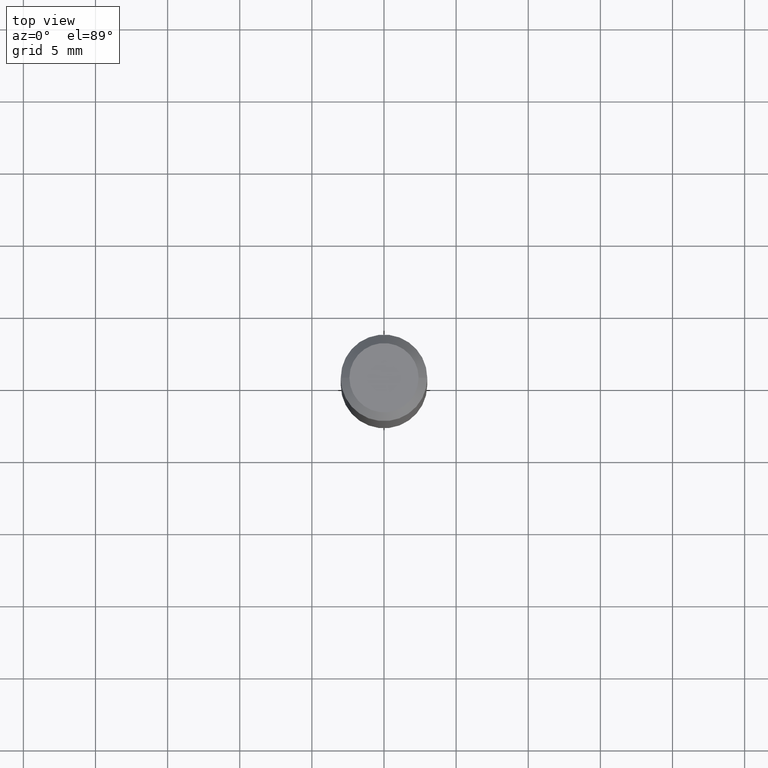
[diagram: clean part render]
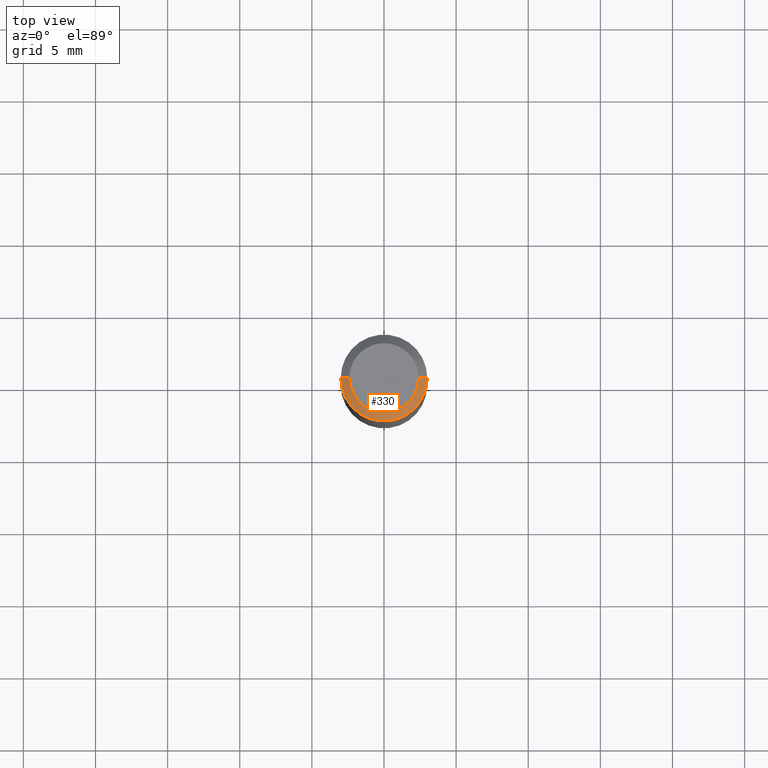
[diagram: same view with one face highlighted and labeled with its STEP entity id]
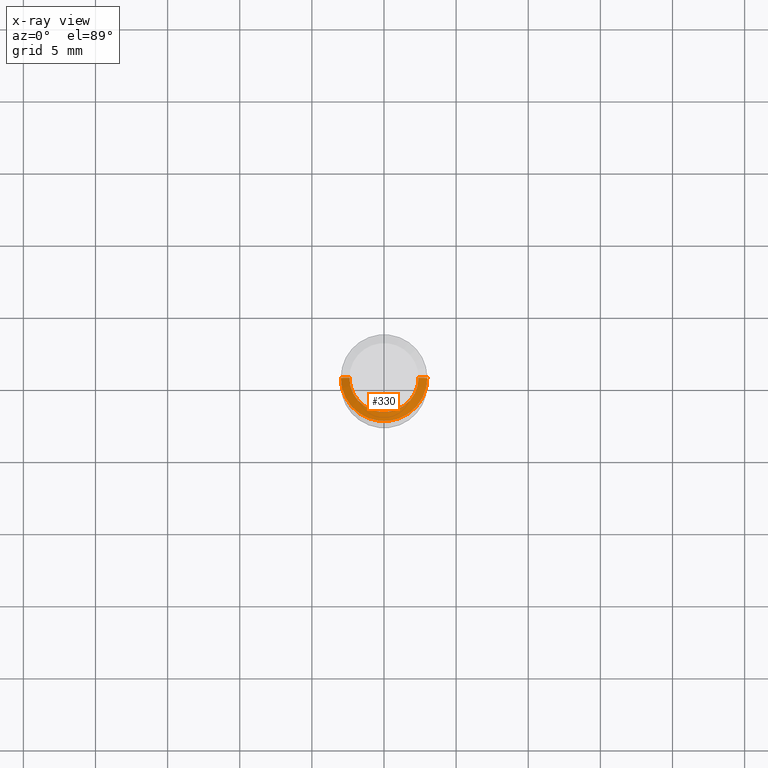
[diagram: x-ray of the same camera — body ghosted, the highlighted face saturated]
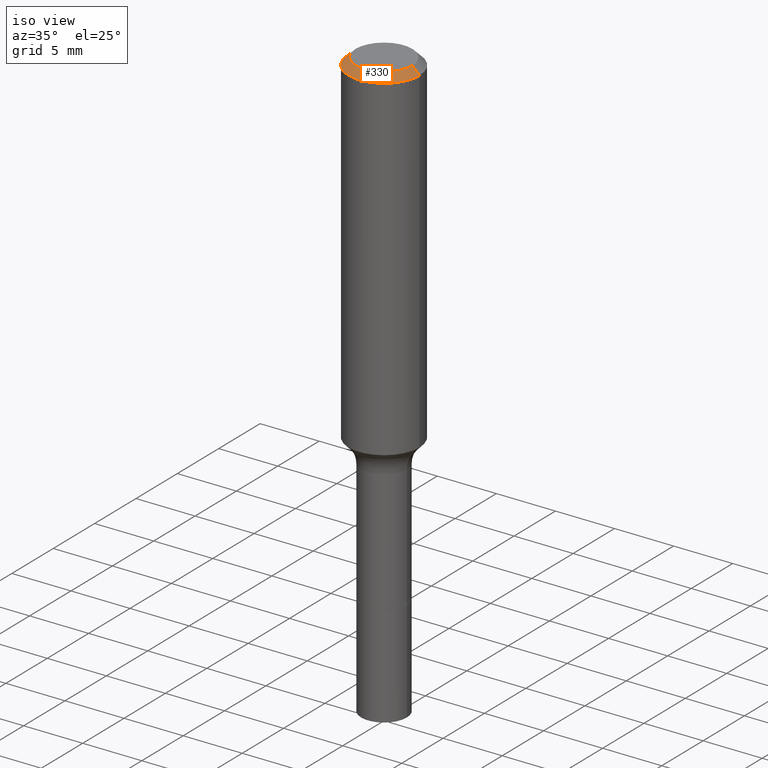
[diagram: same view with one face highlighted and labeled with its STEP entity id]
A machine part, top view. The second image highlights one B-rep face of the part: STEP entity #330.
The next image is the same camera in x-ray: the body ghosted, the highlighted face saturated — about 0% of this face is hidden behind the body in this view.
A second angle (iso view) of the same face is appended — the face is thin or edge-on in the first view.
In plain terms, the highlighted conical surface has half-angle 45 deg.
Its self-contained STEP definition (entity closure, byte-faithful):
#20 = DIRECTION ( 'NONE',  ( -2.445468806185136597E-29, 3.491481338843145583E-15, 1.000000000000000000 ) ) ;
#43 = VERTEX_POINT ( 'NONE', #389 ) ;
#58 = AXIS2_PLACEMENT_3D ( 'NONE', #90, #245, #351 ) ;
#65 = AXIS2_PLACEMENT_3D ( 'NONE', #393, #196, #204 ) ;
#90 = CARTESIAN_POINT ( 'NONE',  ( 7.545787641473140628E-46, -1.077338491108201769E-31, -3.085620075131671975E-17 ) ) ;
#127 = EDGE_LOOP ( 'NONE', ( #382, #246, #328, #197 ) ) ;
#136 = CIRCLE ( 'NONE', #58, 0.09447999999999998066 ) ;
#162 = CARTESIAN_POINT ( 'NONE',  ( -0.09447999999999998066, 7.009847083995354710E-16, -3.085620075132147757E-17 ) ) ;
#170 = CARTESIAN_POINT ( 'NONE',  ( 0.1180999999999999966, -9.071566814582237199E-16, -0.02362000000000014435 ) ) ;
#177 = DIRECTION ( 'NONE',  ( 1.000000000000000000, -6.982962677686266711E-15, 0.000000000000000000 ) ) ;
#183 = VERTEX_POINT ( 'NONE', #170 ) ;
#196 = DIRECTION ( 'NONE',  ( 2.445468806185136597E-29, -3.491481338843145583E-15, -1.000000000000000000 ) ) ;
#197 = ORIENTED_EDGE ( 'NONE', *, *, #504, .T. ) ;
#204 = DIRECTION ( 'NONE',  ( -1.000000000000000000, 6.982962677686266711E-15, 0.000000000000000000 ) ) ;
#214 = CONICAL_SURFACE ( 'NONE', #65, 0.1180999999999999966, 0.7853981633974461696 ) ;
#228 = EDGE_CURVE ( 'NONE', #274, #183, #327, .T. ) ;
#241 = VERTEX_POINT ( 'NONE', #162 ) ;
#242 = DIRECTION ( 'NONE',  ( 0.7071067811865460184, -7.319954787623251312E-15, -0.7071067811865490160 ) ) ;
#245 = DIRECTION ( 'NONE',  ( -2.445468806185136597E-29, 3.491481338843145583E-15, 1.000000000000000000 ) ) ;
#246 = ORIENTED_EDGE ( 'NONE', *, *, #302, .F. ) ;
#250 = AXIS2_PLACEMENT_3D ( 'NONE', #260, #20, #177 ) ;
#260 = CARTESIAN_POINT ( 'NONE',  ( 5.776197320209328408E-31, -8.246878922347560526E-17, -0.02362000000000014435 ) ) ;
#274 = VERTEX_POINT ( 'NONE', #361 ) ;
#285 = CIRCLE ( 'NONE', #250, 0.1180999999999999966 ) ;
#288 = DIRECTION ( 'NONE',  ( -0.7071067811865460184, 2.468850131082241283E-15, -0.7071067811865490160 ) ) ;
#302 = EDGE_CURVE ( 'NONE', #241, #274, #136, .T. ) ;
#327 = LINE ( 'NONE', #391, #394 ) ;
#328 = ORIENTED_EDGE ( 'NONE', *, *, #359, .T. ) ;
#330 = ADVANCED_FACE ( 'NONE', ( #467 ), #214, .T. ) ;
#351 = DIRECTION ( 'NONE',  ( 1.000000000000000000, -6.982962677686267499E-15, 4.875432709231658792E-29 ) ) ;
#359 = EDGE_CURVE ( 'NONE', #241, #43, #438, .T. ) ;
#361 = CARTESIAN_POINT ( 'NONE',  ( 0.09447999999999998066, -7.704367267948738690E-16, -3.085620075131172158E-17 ) ) ;
#382 = ORIENTED_EDGE ( 'NONE', *, *, #228, .F. ) ;
#389 = CARTESIAN_POINT ( 'NONE',  ( -0.1180999999999999966, -1.198932197822121231E-15, -0.02362000000000014435 ) ) ;
#391 = CARTESIAN_POINT ( 'NONE',  ( 0.1180999999999999966, -8.926936027602933910E-16, -0.02362000000000014435 ) ) ;
#393 = CARTESIAN_POINT ( 'NONE',  ( 5.776197320209328408E-31, -8.246878922347560526E-17, -0.02362000000000014435 ) ) ;
#394 = VECTOR ( 'NONE', #242, 39.37007874015748143 ) ;
#438 = LINE ( 'NONE', #516, #498 ) ;
#467 = FACE_OUTER_BOUND ( 'NONE', #127, .T. ) ;
#498 = VECTOR ( 'NONE', #288, 39.37007874015748143 ) ;
#504 = EDGE_CURVE ( 'NONE', #43, #183, #285, .T. ) ;
#516 = CARTESIAN_POINT ( 'NONE',  ( -0.1180999999999999966, 7.422191030112725094E-16, -0.02362000000000014435 ) ) ;